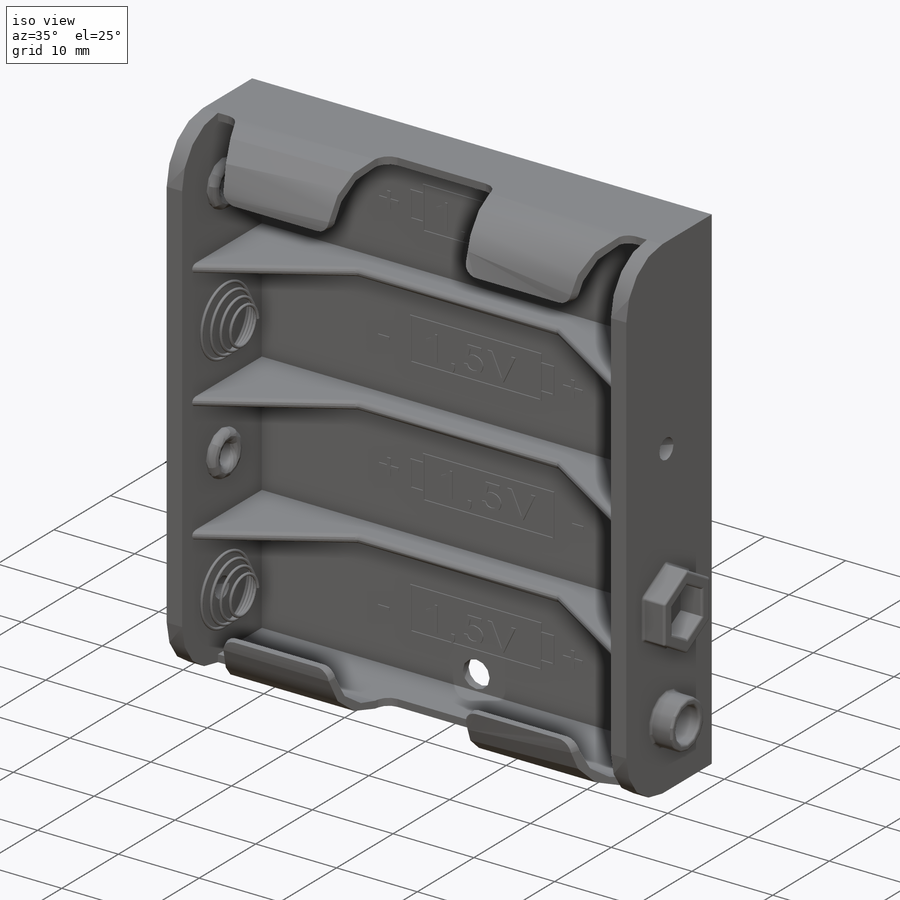
[diagram: iso view]
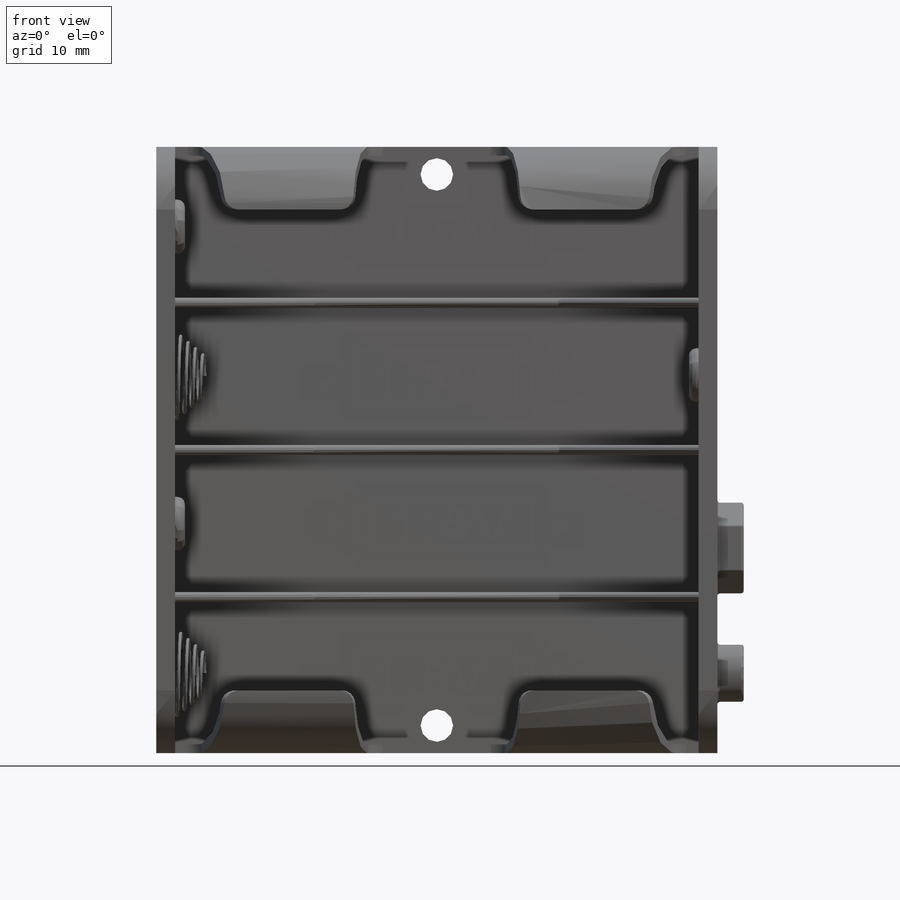
[diagram: front view]
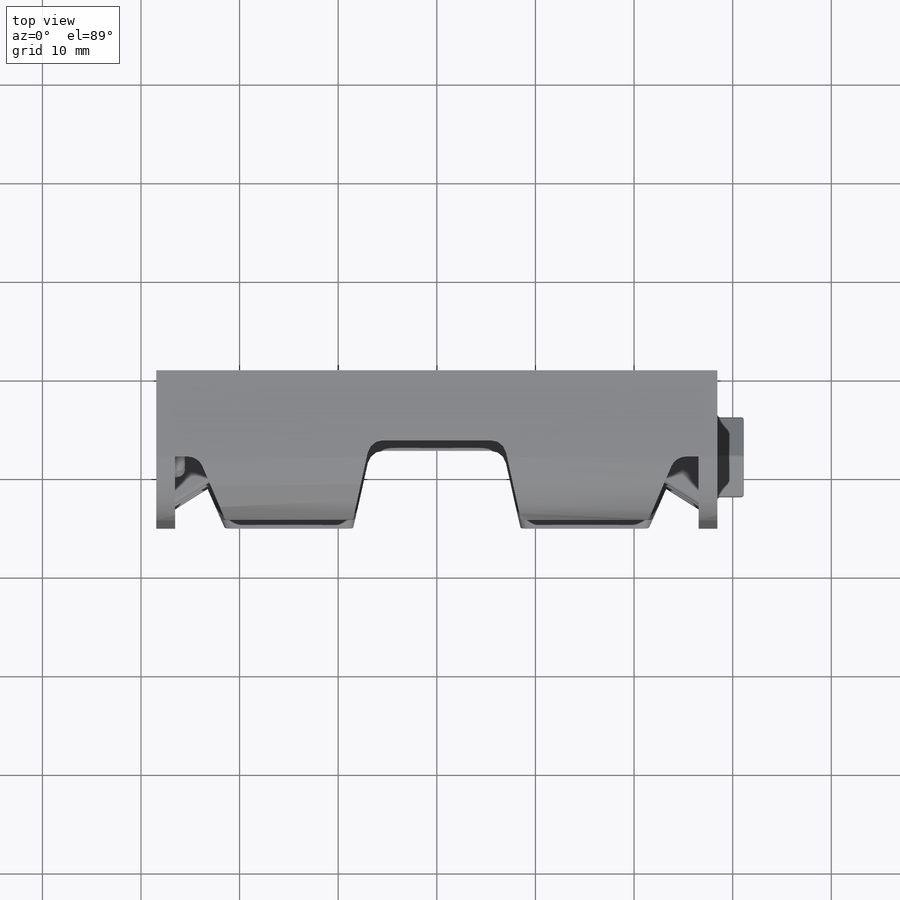
[diagram: top view]
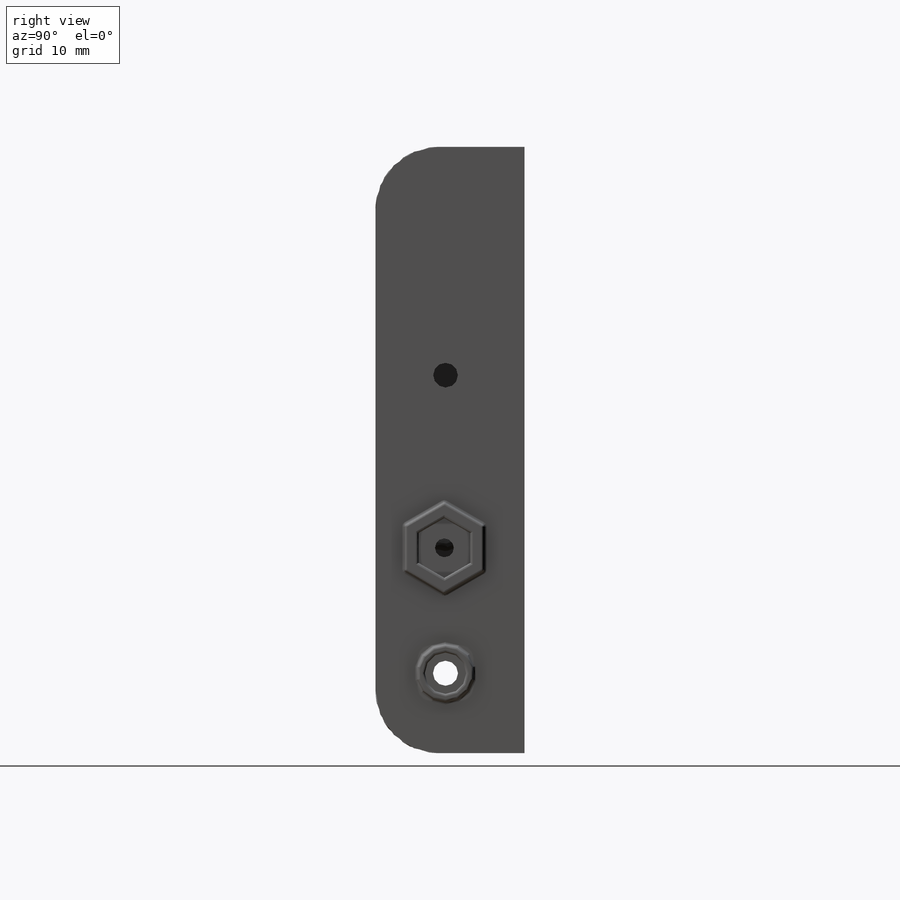
[diagram: right view]
SOLIDWORKS PART (.sldprt)
format: sldprt  version: not decoded by parser v0  size: 2,000,384 bytes
history: native  units: mm
features: sketch x19, cut_extrude x9, extrude x8, fillet x7, plane x5, move_body x5, mirror x2, material x1, boolean_combine x1, helix x1, sweep x1 (+8 scaffold rows collapsed)
feature tree (67):
  scaffold x8  (default folders/planes/origin — collapsed)
  material  "PTFE (general)"
  plane  "Plane1"
  plane  "Plane2"
  plane  "Plane3"
  sketch  "Sketch1"  dims[D1=56.896mm D2=61.468mm]
  extrude  "Extrude1"  Depth=15.113mm
  fillet  "Fillet1"  Radius=6.35mm
  sketch  "Sketch2"  dims[D2=0.508mm D3=1.016mm D1=0.889mm]
  cut_extrude  "Cut-Extrude1"  Depth=53.086mm
  sketch  "Sketch3"  dims[D1=7.112mm D2=17.018mm D3=13.462mm D4=2.3368mm D5=5.08mm]
  cut_extrude  "Cut-Extrude2"  Depth=7.112mm
  fillet  "Fillet2"  Radius=1.27mm
  sketch  "Sketch4"  dims[c1.D1=~4.165727mm c1.D2=~4.165727mm c1.D3=2.54mm c2.D1=8.128mm c2.D2=7.2075mm c3.D1=6.9985mm]
  cut_extrude  "Cut-Extrude3"  Depth=98.806mm
  mirror  "Mirror1"
  plane  "Plane4"  Offset=2.032mm
  sketch  "Sketch7"  dims[c1.D2=~28.639021mm c1.D1=~4.402095mm c2.D2=55.88mm c2.D1=~4.851288mm c3.D2=55.88mm c3.D1=1.016mm c4.D2=14.9225mm c4.D3=14.9225mm]
  extrude  "Extrude2"  Depth=5.08mm
  sketch  "Sketch8"  dims[D1=30.861mm D2=55.88mm]
  cut_extrude  "Extrude3"  Depth=1.778mm
  sketch  "Sketch9"  dims[D1=24.765mm D2=3.4036mm D3=55.88mm]
  cut_extrude  "Extrude4"  [1 undecoded]
  fillet  "Fillet3"  Radius=1.5875mm
  fillet  "Fillet4"  Radius=0.508mm
  sketch  "Sketch10"  dims[c1.D1=~3.913984mm c1.D2=5.7912mm c1.D3=4.191mm c2.D1=8.0391mm c2.D4=1.397mm c2.D5=12.7mm]
  extrude  "Extrude5"  Depth=2.667mm
  fillet  "Fillet5"  Radius=0.254mm
  sketch  "Sketch11"  dims[D1=1.905mm]
  cut_extrude  "Extrude6"  [1 undecoded]
  sketch  "Sketch12"  dims[c1.D1=3.302mm c1.D2=3.302mm c1.D3=3.302mm c1.D4=3.302mm c2.D3=55.88mm c2.D4=27.94mm]
  cut_extrude  "Extrude7"  [1 undecoded]
  sketch  "Schizzo1"  dims[c1.D1=16.0mm c1.D2=5.0mm c2.D1=5.0mm c2.D3=1.5mm c2.D4=1.5mm c2.D5=1.5mm c3.D3=0.15mm c3.D4=0.15mm c3.D6=0.15mm c3.D7=0.15mm c3.D8=0.075mm c3.D9=0.075mm]
  extrude  "Estrusione-Estrusione1"  Depth=0.1mm
  move_body  "Corpo-Sposta/copia1"
  move_body  "Corpo-Sposta/copia2"
  move_body  "Corpo-Sposta/copia3"
  boolean_combine  "Abbina3"
  sketch  "Schizzo2"
  extrude  "Estrusione-Estrusione2"  Depth=0.1mm
  sketch  "Schizzo3"  dims[c1.D2=2.5mm c1.D4=30.131mm c1.D1=1.5mm c2.D2=1.5mm c2.D3=1.5mm]
  extrude  "Estrusione-Estrusione3"  Depth=1mm
  fillet  "Raccordo1"  Radius=0.75mm
  sketch  "Schizzo4"  dims[D2=2.5mm D1=15.0655mm D3=1.5mm]
  extrude  "Estrusione-Estrusione4"  Depth=1mm
  fillet  "Raccordo2"  Radius=0.75mm
  sketch  "Schizzo5"  dims[D1=0.0mm]
  cut_extrude  "Taglio-Estrusione1"  [1 undecoded]
  sketch  "Schizzo6"
  extrude  "Estrusione-Estrusione5"  [1 undecoded]
  sketch  "Schizzo7"  dims[D1=0.0mm]
  cut_extrude  "Taglio-Estrusione2"  [1 undecoded]
  sketch  "Schizzo11"  dims[D1=9.0mm]
  helix  "Elica/Spirale2"  Pitch=3mm
  plane  "Piano2"
  sketch  "Schizzo12"  dims[D1=0.34mm]
  sweep  "Sweep2"
  move_body  "Corpo-Sposta/copia4"
  mirror  "Specchia1"
  move_body  "Corpo-Sposta/copia5"
decode coverage: 36 of 53 modeling features carry decoded parameters
note: ~ marks probable driven/reference dimensions
note: 6 parameter values undecoded
summary: no parameter record found for 6 features
note: suppression state not decoded; provenance and decode notes live in map.json
